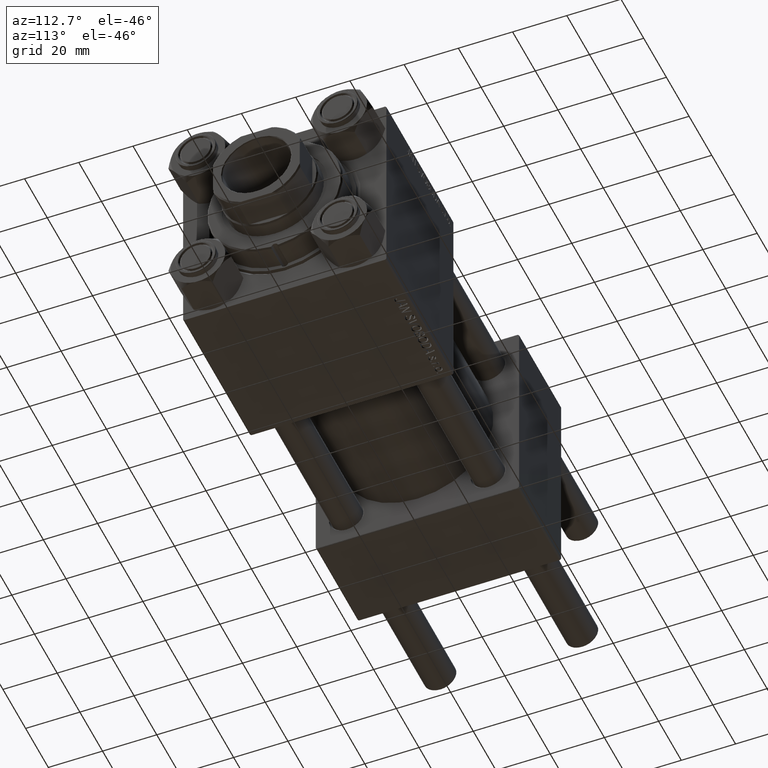
[diagram: clean part render]
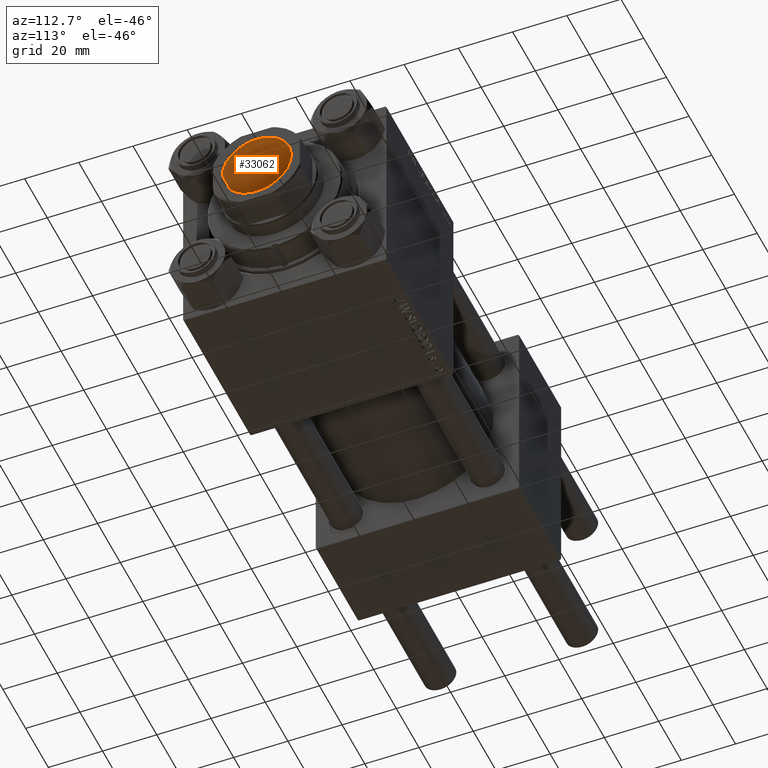
[diagram: same view with one face highlighted and labeled with its STEP entity id]
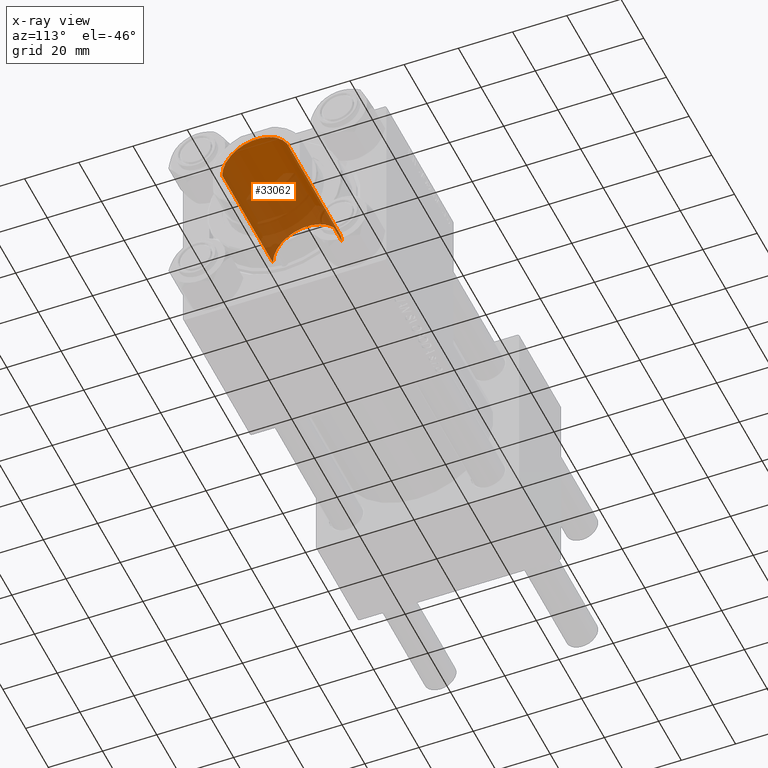
[diagram: x-ray of the same camera — body ghosted, the highlighted face saturated]
A machine part, auxiliary view. The second image highlights one B-rep face of the part: STEP entity #33062.
The next image is the same camera in x-ray: the body ghosted, the highlighted face saturated — about 50% of this face is hidden behind the body in this view.
In plain terms, the highlighted cylindrical surface (partial cylindrical patch) has radius 12.75 mm, axis along (1, 0, -0).
Its self-contained STEP definition (entity closure, byte-faithful):
#898 = DIRECTION ( 'NONE',  ( 1.000000000000000000, 0.000000000000000000, 0.000000000000000000 ) ) ;
#2286 = AXIS2_PLACEMENT_3D ( 'NONE', #48533, #26276, #14657 ) ;
#3601 = VERTEX_POINT ( 'NONE', #24314 ) ;
#5101 = ORIENTED_EDGE ( 'NONE', *, *, #5511, .F. ) ;
#5511 = EDGE_CURVE ( 'NONE', #33646, #25895, #13262, .T. ) ;
#5687 = DIRECTION ( 'NONE',  ( -0.000000000000000000, -0.000000000000000000, 1.000000000000000000 ) ) ;
#11150 = VECTOR ( 'NONE', #5687, 1000.000000000000000 ) ;
#13262 = LINE ( 'NONE', #28674, #11150 ) ;
#14657 = DIRECTION ( 'NONE',  ( 1.000000000000000000, 0.000000000000000000, 0.000000000000000000 ) ) ;
#15371 = FACE_OUTER_BOUND ( 'NONE', #27239, .T. ) ;
#15681 = LINE ( 'NONE', #27299, #47723 ) ;
#16243 = EDGE_CURVE ( 'NONE', #19156, #3601, #15681, .T. ) ;
#18974 = AXIS2_PLACEMENT_3D ( 'NONE', #30780, #31717, #898 ) ;
#19156 = VERTEX_POINT ( 'NONE', #35915 ) ;
#21118 = DIRECTION ( 'NONE',  ( 1.000000000000000000, 0.000000000000000000, 0.000000000000000000 ) ) ;
#21460 = CARTESIAN_POINT ( 'NONE',  ( 12.74999999999999112, 0.000000000000000000, 141.7000000000000171 ) ) ;
#22032 = ORIENTED_EDGE ( 'NONE', *, *, #16243, .T. ) ;
#24070 = CIRCLE ( 'NONE', #44251, 12.74999999999999112 ) ;
#24314 = CARTESIAN_POINT ( 'NONE',  ( -12.74999999999999112, 1.561424668912874125E-15, 141.7000000000000171 ) ) ;
#25895 = VERTEX_POINT ( 'NONE', #21460 ) ;
#26276 = DIRECTION ( 'NONE',  ( -0.000000000000000000, -0.000000000000000000, 1.000000000000000000 ) ) ;
#27239 = EDGE_LOOP ( 'NONE', ( #28716, #22032, #37342, #5101 ) ) ;
#27299 = CARTESIAN_POINT ( 'NONE',  ( -12.74999999999999112, 1.561424668912874125E-15, 142.0000000000000284 ) ) ;
#28669 = CYLINDRICAL_SURFACE ( 'NONE', #18974, 12.74999999999999112 ) ;
#28674 = CARTESIAN_POINT ( 'NONE',  ( 12.74999999999999112, 0.000000000000000000, 142.0000000000000284 ) ) ;
#28716 = ORIENTED_EDGE ( 'NONE', *, *, #38884, .F. ) ;
#29700 = DIRECTION ( 'NONE',  ( 0.000000000000000000, 0.000000000000000000, 1.000000000000000000 ) ) ;
#30524 = CIRCLE ( 'NONE', #2286, 12.74999999999998934 ) ;
#30590 = DIRECTION ( 'NONE',  ( -0.000000000000000000, -0.000000000000000000, 1.000000000000000000 ) ) ;
#30780 = CARTESIAN_POINT ( 'NONE',  ( 0.000000000000000000, 0.000000000000000000, 142.0000000000000284 ) ) ;
#31717 = DIRECTION ( 'NONE',  ( -0.000000000000000000, -0.000000000000000000, 1.000000000000000000 ) ) ;
#33062 = ADVANCED_FACE ( 'NONE', ( #15371 ), #28669, .F. ) ;
#33646 = VERTEX_POINT ( 'NONE', #38202 ) ;
#35915 = CARTESIAN_POINT ( 'NONE',  ( -12.74999999999998934, 1.561424668912873928E-15, 97.00000000000001421 ) ) ;
#37342 = ORIENTED_EDGE ( 'NONE', *, *, #39792, .T. ) ;
#38202 = CARTESIAN_POINT ( 'NONE',  ( 12.74999999999998934, 0.000000000000000000, 97.00000000000001421 ) ) ;
#38884 = EDGE_CURVE ( 'NONE', #19156, #33646, #30524, .T. ) ;
#39792 = EDGE_CURVE ( 'NONE', #3601, #25895, #24070, .T. ) ;
#41335 = CARTESIAN_POINT ( 'NONE',  ( 0.000000000000000000, 0.000000000000000000, 141.7000000000000171 ) ) ;
#44251 = AXIS2_PLACEMENT_3D ( 'NONE', #41335, #29700, #21118 ) ;
#47723 = VECTOR ( 'NONE', #30590, 1000.000000000000000 ) ;
#48533 = CARTESIAN_POINT ( 'NONE',  ( 0.000000000000000000, 0.000000000000000000, 97.00000000000001421 ) ) ;